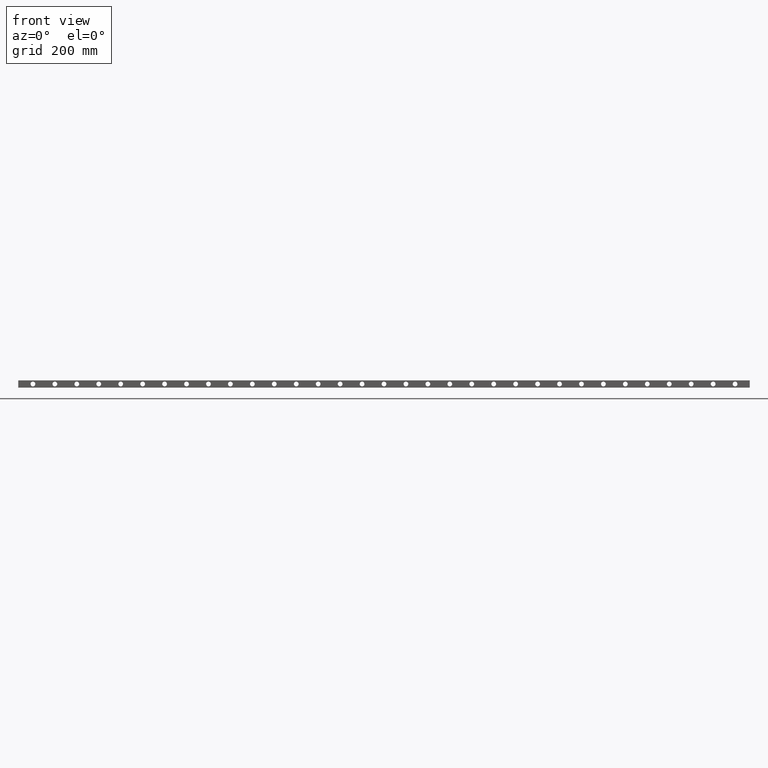
[diagram: clean part render]
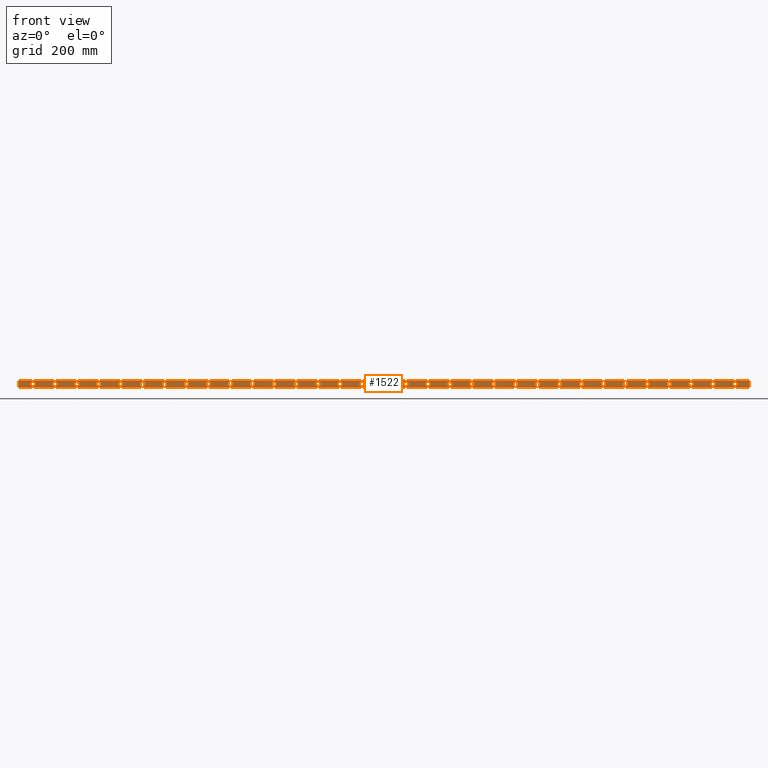
[diagram: same view with one face highlighted and labeled with its STEP entity id]
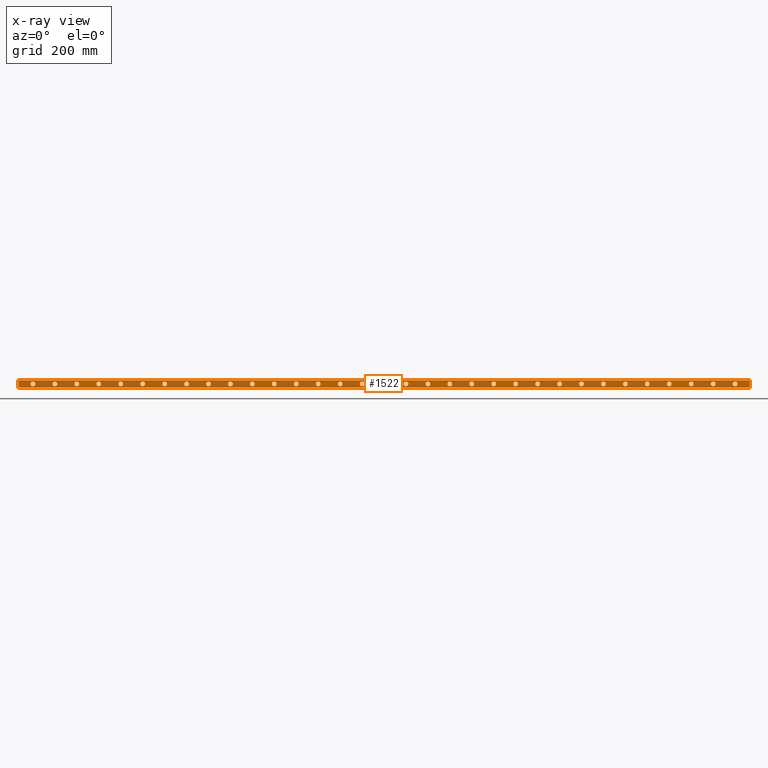
[diagram: x-ray of the same camera — body ghosted, the highlighted face saturated]
A machine part, front view. The second image highlights one B-rep face of the part: STEP entity #1522.
The next image is the same camera in x-ray: the body ghosted, the highlighted face saturated — about 0% of this face is hidden behind the body in this view.
In plain terms, the highlighted planar face has unit normal (0, -1, 0).
Its self-contained STEP definition (entity closure, byte-faithful):
#3 = CIRCLE ( 'NONE', #3822, 6.499999999999903200 ) ;
#14 = CIRCLE ( 'NONE', #6416, 6.499999999999903200 ) ;
#24 = ORIENTED_EDGE ( 'NONE', *, *, #5024, .F. ) ;
#50 = DIRECTION ( 'NONE',  ( 0.0000000000000000000, 1.000000000000000000, 0.0000000000000000000 ) ) ;
#55 = CARTESIAN_POINT ( 'NONE',  ( 519.9999999999998900, 0.0000000000000000000, -10.00000000000000000 ) ) ;
#84 = CIRCLE ( 'NONE', #1071, 6.499999999999903200 ) ;
#162 = EDGE_LOOP ( 'NONE', ( #5107, #5242 ) ) ;
#203 = CARTESIAN_POINT ( 'NONE',  ( 1959.999999999999500, 0.0000000000000000000, -16.49999999999990400 ) ) ;
#205 = CARTESIAN_POINT ( 'NONE',  ( 699.9999999999998900, 0.0000000000000000000, -16.49999999999990400 ) ) ;
#223 = DIRECTION ( 'NONE',  ( 0.0000000000000000000, 0.0000000000000000000, 1.000000000000000000 ) ) ;
#230 = DIRECTION ( 'NONE',  ( 0.0000000000000000000, 1.000000000000000000, 0.0000000000000000000 ) ) ;
#234 = CARTESIAN_POINT ( 'NONE',  ( 1359.999999999999500, 0.0000000000000000000, -10.00000000000000000 ) ) ;
#255 = CARTESIAN_POINT ( 'NONE',  ( 2000.000000000000000, 0.0000000000000000000, -20.00000000000000000 ) ) ;
#257 = DIRECTION ( 'NONE',  ( 0.0000000000000000000, 1.000000000000000000, 0.0000000000000000000 ) ) ;
#282 = CARTESIAN_POINT ( 'NONE',  ( 459.9999999999998300, 0.0000000000000000000, -3.499999999999984900 ) ) ;
#316 = CARTESIAN_POINT ( 'NONE',  ( 999.9999999999997700, 0.0000000000000000000, -16.49999999999990400 ) ) ;
#332 = EDGE_CURVE ( 'NONE', #3062, #5995, #1976, .T. ) ;
#345 = EDGE_CURVE ( 'NONE', #4290, #1156, #1765, .T. ) ;
#369 = DIRECTION ( 'NONE',  ( 0.0000000000000000000, 1.000000000000000000, 0.0000000000000000000 ) ) ;
#380 = CARTESIAN_POINT ( 'NONE',  ( 879.9999999999997700, 0.0000000000000000000, -10.00000000000000000 ) ) ;
#381 = CIRCLE ( 'NONE', #6992, 6.499999999999903200 ) ;
#387 = EDGE_CURVE ( 'NONE', #2606, #1837, #3340, .T. ) ;
#407 = CIRCLE ( 'NONE', #3486, 6.499999999999903200 ) ;
#411 = FACE_BOUND ( 'NONE', #1332, .T. ) ;
#415 = EDGE_LOOP ( 'NONE', ( #2282, #7881 ) ) ;
#419 = CARTESIAN_POINT ( 'NONE',  ( 699.9999999999998900, 0.0000000000000000000, -10.00000000000000000 ) ) ;
#434 = CARTESIAN_POINT ( 'NONE',  ( 399.9999999999998300, 0.0000000000000000000, -3.499999999999984900 ) ) ;
#435 = DIRECTION ( 'NONE',  ( 0.0000000000000000000, 0.0000000000000000000, 1.000000000000000000 ) ) ;
#487 = CARTESIAN_POINT ( 'NONE',  ( 1899.999999999999500, 0.0000000000000000000, -10.00000000000000000 ) ) ;
#507 = DIRECTION ( 'NONE',  ( 0.0000000000000000000, 0.0000000000000000000, 1.000000000000000000 ) ) ;
#513 = LINE ( 'NONE', #5257, #5207 ) ;
#523 = DIRECTION ( 'NONE',  ( 0.0000000000000000000, 1.000000000000000000, 0.0000000000000000000 ) ) ;
#527 = CARTESIAN_POINT ( 'NONE',  ( 1359.999999999999500, 0.0000000000000000000, -16.49999999999990400 ) ) ;
#546 = DIRECTION ( 'NONE',  ( 0.0000000000000000000, 0.0000000000000000000, 1.000000000000000000 ) ) ;
#557 = VERTEX_POINT ( 'NONE', #5513 ) ;
#561 = ORIENTED_EDGE ( 'NONE', *, *, #4716, .F. ) ;
#583 = DIRECTION ( 'NONE',  ( -0.0000000000000000000, -0.0000000000000000000, 1.000000000000000000 ) ) ;
#584 = CARTESIAN_POINT ( 'NONE',  ( 939.9999999999998900, 0.0000000000000000000, -10.00000000000000000 ) ) ;
#606 = EDGE_CURVE ( 'NONE', #5543, #3819, #717, .T. ) ;
#643 = VERTEX_POINT ( 'NONE', #4923 ) ;
#644 = VERTEX_POINT ( 'NONE', #4916 ) ;
#646 = EDGE_LOOP ( 'NONE', ( #1142, #2201 ) ) ;
#650 = DIRECTION ( 'NONE',  ( 0.0000000000000000000, 0.0000000000000000000, 1.000000000000000000 ) ) ;
#651 = DIRECTION ( 'NONE',  ( 0.0000000000000000000, 0.0000000000000000000, 1.000000000000000000 ) ) ;
#652 = DIRECTION ( 'NONE',  ( 0.0000000000000000000, 1.000000000000000000, 0.0000000000000000000 ) ) ;
#656 = DIRECTION ( 'NONE',  ( 0.0000000000000000000, 1.000000000000000000, 0.0000000000000000000 ) ) ;
#659 = CARTESIAN_POINT ( 'NONE',  ( 999.9999999999997700, 0.0000000000000000000, -10.00000000000000000 ) ) ;
#667 = CARTESIAN_POINT ( 'NONE',  ( 1599.999999999999500, 0.0000000000000000000, -10.00000000000000000 ) ) ;
#673 = EDGE_CURVE ( 'NONE', #6929, #4627, #6076, .T. ) ;
#689 = AXIS2_PLACEMENT_3D ( 'NONE', #2948, #7581, #3598 ) ;
#701 = CARTESIAN_POINT ( 'NONE',  ( 1479.999999999999500, 0.0000000000000000000, -16.49999999999990400 ) ) ;
#710 = FACE_BOUND ( 'NONE', #3956, .T. ) ;
#717 = CIRCLE ( 'NONE', #8179, 6.500000000000015100 ) ;
#719 = DIRECTION ( 'NONE',  ( 0.0000000000000000000, 0.0000000000000000000, 1.000000000000000000 ) ) ;
#724 = ORIENTED_EDGE ( 'NONE', *, *, #2222, .T. ) ;
#729 = CARTESIAN_POINT ( 'NONE',  ( 759.9999999999997700, 0.0000000000000000000, -10.00000000000000000 ) ) ;
#769 = ORIENTED_EDGE ( 'NONE', *, *, #6396, .T. ) ;
#774 = CARTESIAN_POINT ( 'NONE',  ( 1839.999999999999500, 0.0000000000000000000, -3.500000000000096800 ) ) ;
#792 = AXIS2_PLACEMENT_3D ( 'NONE', #7364, #3388, #7962 ) ;
#797 = CIRCLE ( 'NONE', #2028, 6.499999999999903200 ) ;
#803 = CARTESIAN_POINT ( 'NONE',  ( 639.9999999999998900, 0.0000000000000000000, -3.499999999999865000 ) ) ;
#808 = AXIS2_PLACEMENT_3D ( 'NONE', #3494, #3485, #3477 ) ;
#839 = CARTESIAN_POINT ( 'NONE',  ( 1059.999999999999800, 0.0000000000000000000, -10.00000000000000000 ) ) ;
#852 = AXIS2_PLACEMENT_3D ( 'NONE', #3565, #8127, #4242 ) ;
#857 = CARTESIAN_POINT ( 'NONE',  ( 339.9999999999998900, 0.0000000000000000000, -3.499999999999984900 ) ) ;
#865 = EDGE_CURVE ( 'NONE', #4017, #2893, #6383, .T. ) ;
#868 = AXIS2_PLACEMENT_3D ( 'NONE', #487, #5153, #1149 ) ;
#882 = EDGE_CURVE ( 'NONE', #2428, #6798, #6584, .T. ) ;
#918 = FACE_BOUND ( 'NONE', #5348, .T. ) ;
#920 = CARTESIAN_POINT ( 'NONE',  ( 519.9999999999998900, 0.0000000000000000000, -10.00000000000000000 ) ) ;
#932 = CARTESIAN_POINT ( 'NONE',  ( 579.9999999999998900, 0.0000000000000000000, -3.500000000000096800 ) ) ;
#933 = CIRCLE ( 'NONE', #1292, 6.500000000000015100 ) ;
#940 = EDGE_CURVE ( 'NONE', #6275, #2364, #5748, .T. ) ;
#966 = CARTESIAN_POINT ( 'NONE',  ( 159.9999999999999700, 0.0000000000000000000, -16.50000000000001400 ) ) ;
#982 = EDGE_CURVE ( 'NONE', #2972, #1737, #3128, .T. ) ;
#984 = EDGE_CURVE ( 'NONE', #7423, #6336, #8126, .T. ) ;
#992 = CARTESIAN_POINT ( 'NONE',  ( 1419.999999999999800, 0.0000000000000000000, -16.49999999999990400 ) ) ;
#995 = CIRCLE ( 'NONE', #5461, 6.500000000000135000 ) ;
#1014 = CARTESIAN_POINT ( 'NONE',  ( 1719.999999999999500, 0.0000000000000000000, -16.49999999999990400 ) ) ;
#1016 = CIRCLE ( 'NONE', #1815, 6.499999999999903200 ) ;
#1048 = DIRECTION ( 'NONE',  ( 0.0000000000000000000, 0.0000000000000000000, 1.000000000000000000 ) ) ;
#1058 = CARTESIAN_POINT ( 'NONE',  ( 519.9999999999998900, 0.0000000000000000000, -16.49999999999990400 ) ) ;
#1071 = AXIS2_PLACEMENT_3D ( 'NONE', #419, #5076, #1073 ) ;
#1073 = DIRECTION ( 'NONE',  ( 0.0000000000000000000, 0.0000000000000000000, 1.000000000000000000 ) ) ;
#1074 = CARTESIAN_POINT ( 'NONE',  ( 579.9999999999998900, 0.0000000000000000000, -16.49999999999990400 ) ) ;
#1117 = CIRCLE ( 'NONE', #868, 6.499999999999903200 ) ;
#1124 = FACE_BOUND ( 'NONE', #6910, .T. ) ;
#1141 = DIRECTION ( 'NONE',  ( 0.0000000000000000000, 1.000000000000000000, 0.0000000000000000000 ) ) ;
#1142 = ORIENTED_EDGE ( 'NONE', *, *, #673, .T. ) ;
#1149 = DIRECTION ( 'NONE',  ( 0.0000000000000000000, 0.0000000000000000000, 1.000000000000000000 ) ) ;
#1156 = VERTEX_POINT ( 'NONE', #2939 ) ;
#1178 = DIRECTION ( 'NONE',  ( 0.0000000000000000000, -0.0000000000000000000, -1.000000000000000000 ) ) ;
#1187 = DIRECTION ( 'NONE',  ( 0.0000000000000000000, -1.000000000000000000, 0.0000000000000000000 ) ) ;
#1197 = PLANE ( 'NONE',  #5582 ) ;
#1198 = CARTESIAN_POINT ( 'NONE',  ( 0.0000000000000000000, 0.0000000000000000000, 0.0000000000000000000 ) ) ;
#1204 = EDGE_CURVE ( 'NONE', #6785, #4921, #2073, .T. ) ;
#1228 = VECTOR ( 'NONE', #7637, 1000.000000000000000 ) ;
#1229 = CARTESIAN_POINT ( 'NONE',  ( 819.9999999999998900, 0.0000000000000000000, -3.500000000000096800 ) ) ;
#1249 = DIRECTION ( 'NONE',  ( 0.0000000000000000000, 0.0000000000000000000, 1.000000000000000000 ) ) ;
#1276 = EDGE_CURVE ( 'NONE', #4445, #5691, #6973, .T. ) ;
#1279 = ORIENTED_EDGE ( 'NONE', *, *, #1276, .T. ) ;
#1280 = CARTESIAN_POINT ( 'NONE',  ( 279.9999999999999400, 0.0000000000000000000, -3.499999999999984900 ) ) ;
#1292 = AXIS2_PLACEMENT_3D ( 'NONE', #4368, #369, #5039 ) ;
#1296 = VERTEX_POINT ( 'NONE', #2200 ) ;
#1331 = FACE_BOUND ( 'NONE', #5677, .T. ) ;
#1332 = EDGE_LOOP ( 'NONE', ( #3133, #7431 ) ) ;
#1358 = DIRECTION ( 'NONE',  ( 0.0000000000000000000, 1.000000000000000000, 0.0000000000000000000 ) ) ;
#1362 = CARTESIAN_POINT ( 'NONE',  ( 459.9999999999998300, 0.0000000000000000000, -10.00000000000000000 ) ) ;
#1372 = DIRECTION ( 'NONE',  ( 0.0000000000000000000, 1.000000000000000000, 0.0000000000000000000 ) ) ;
#1383 = VERTEX_POINT ( 'NONE', #1904 ) ;
#1391 = DIRECTION ( 'NONE',  ( 0.0000000000000000000, 0.0000000000000000000, 1.000000000000000000 ) ) ;
#1405 = ORIENTED_EDGE ( 'NONE', *, *, #6869, .T. ) ;
#1421 = CARTESIAN_POINT ( 'NONE',  ( 1359.999999999999500, 0.0000000000000000000, -10.00000000000000000 ) ) ;
#1440 = CARTESIAN_POINT ( 'NONE',  ( 219.9999999999999400, 0.0000000000000000000, -3.499999999999984900 ) ) ;
#1465 = ORIENTED_EDGE ( 'NONE', *, *, #7412, .T. ) ;
#1484 = AXIS2_PLACEMENT_3D ( 'NONE', #4252, #257, #4928 ) ;
#1507 = VERTEX_POINT ( 'NONE', #1229 ) ;
#1509 = DIRECTION ( 'NONE',  ( 0.0000000000000000000, 0.0000000000000000000, 1.000000000000000000 ) ) ;
#1522 = ADVANCED_FACE ( 'NONE', ( #5317, #5530, #411, #1968, #3530, #1754, #8470, #6871, #5103, #3329, #1546, #8299, #6670, #4898, #3117, #1331, #8115, #6479, #4696, #2913, #1124, #7937, #6274, #4484, #2697, #918, #7762, #6069, #4263, #2493, #710, #7577, #5860, #4053 ), #1197, .T. ) ;
#1546 = FACE_BOUND ( 'NONE', #646, .T. ) ;
#1569 = ORIENTED_EDGE ( 'NONE', *, *, #5648, .T. ) ;
#1580 = ORIENTED_EDGE ( 'NONE', *, *, #5822, .T. ) ;
#1584 = DIRECTION ( 'NONE',  ( 0.0000000000000000000, 0.0000000000000000000, 1.000000000000000000 ) ) ;
#1600 = VERTEX_POINT ( 'NONE', #992 ) ;
#1640 = CARTESIAN_POINT ( 'NONE',  ( 99.99999999999997200, 0.0000000000000000000, -16.50000000000001400 ) ) ;
#1647 = AXIS2_PLACEMENT_3D ( 'NONE', #3856, #3832, #3791 ) ;
#1658 = CARTESIAN_POINT ( 'NONE',  ( 1539.999999999999500, 0.0000000000000000000, -10.00000000000000000 ) ) ;
#1681 = ORIENTED_EDGE ( 'NONE', *, *, #8183, .T. ) ;
#1690 = AXIS2_PLACEMENT_3D ( 'NONE', #729, #5404, #1391 ) ;
#1718 = ORIENTED_EDGE ( 'NONE', *, *, #387, .T. ) ;
#1725 = EDGE_CURVE ( 'NONE', #2741, #5498, #8201, .T. ) ;
#1726 = CIRCLE ( 'NONE', #1912, 6.499999999999903200 ) ;
#1734 = CARTESIAN_POINT ( 'NONE',  ( 1059.999999999999800, 0.0000000000000000000, -10.00000000000000000 ) ) ;
#1737 = VERTEX_POINT ( 'NONE', #774 ) ;
#1742 = AXIS2_PLACEMENT_3D ( 'NONE', #5886, #1840, #6534 ) ;
#1754 = FACE_BOUND ( 'NONE', #162, .T. ) ;
#1759 = ORIENTED_EDGE ( 'NONE', *, *, #6503, .T. ) ;
#1765 = CIRCLE ( 'NONE', #5183, 6.500000000000015100 ) ;
#1779 = EDGE_LOOP ( 'NONE', ( #2941, #1718 ) ) ;
#1808 = EDGE_LOOP ( 'NONE', ( #6523, #7438 ) ) ;
#1809 = EDGE_CURVE ( 'NONE', #643, #7697, #1016, .T. ) ;
#1815 = AXIS2_PLACEMENT_3D ( 'NONE', #234, #230, #223 ) ;
#1837 = VERTEX_POINT ( 'NONE', #203 ) ;
#1840 = DIRECTION ( 'NONE',  ( 0.0000000000000000000, 1.000000000000000000, 0.0000000000000000000 ) ) ;
#1863 = AXIS2_PLACEMENT_3D ( 'NONE', #3478, #8047, #4155 ) ;
#1871 = DIRECTION ( 'NONE',  ( 0.0000000000000000000, 1.000000000000000000, 0.0000000000000000000 ) ) ;
#1892 = CARTESIAN_POINT ( 'NONE',  ( 219.9999999999999400, 0.0000000000000000000, -10.00000000000000000 ) ) ;
#1894 = EDGE_LOOP ( 'NONE', ( #3302, #1580 ) ) ;
#1904 = CARTESIAN_POINT ( 'NONE',  ( 459.9999999999998300, 0.0000000000000000000, -16.50000000000001400 ) ) ;
#1912 = AXIS2_PLACEMENT_3D ( 'NONE', #839, #5526, #1509 ) ;
#1916 = AXIS2_PLACEMENT_3D ( 'NONE', #7311, #3332, #7909 ) ;
#1919 = CARTESIAN_POINT ( 'NONE',  ( 1659.999999999999800, 0.0000000000000000000, -16.49999999999990400 ) ) ;
#1932 = EDGE_CURVE ( 'NONE', #7036, #1383, #4599, .T. ) ;
#1961 = CIRCLE ( 'NONE', #792, 6.499999999999903200 ) ;
#1968 = FACE_BOUND ( 'NONE', #1808, .T. ) ;
#1976 = CIRCLE ( 'NONE', #3397, 6.500000000000015100 ) ;
#2028 = AXIS2_PLACEMENT_3D ( 'NONE', #3635, #8174, #4307 ) ;
#2046 = VERTEX_POINT ( 'NONE', #6548 ) ;
#2067 = CIRCLE ( 'NONE', #7834, 6.500000000000015100 ) ;
#2073 = CIRCLE ( 'NONE', #3946, 6.499999999999903200 ) ;
#2079 = CARTESIAN_POINT ( 'NONE',  ( 1239.999999999999800, 0.0000000000000000000, -10.00000000000000000 ) ) ;
#2096 = DIRECTION ( 'NONE',  ( 0.0000000000000000000, 0.0000000000000000000, 1.000000000000000000 ) ) ;
#2104 = EDGE_CURVE ( 'NONE', #4177, #6974, #3952, .T. ) ;
#2143 = CARTESIAN_POINT ( 'NONE',  ( 40.00000000000000000, 0.0000000000000000000, -16.50000000000001400 ) ) ;
#2150 = AXIS2_PLACEMENT_3D ( 'NONE', #3406, #3395, #3385 ) ;
#2163 = EDGE_CURVE ( 'NONE', #1156, #4290, #7670, .T. ) ;
#2200 = CARTESIAN_POINT ( 'NONE',  ( 1539.999999999999500, 0.0000000000000000000, -3.500000000000096800 ) ) ;
#2201 = ORIENTED_EDGE ( 'NONE', *, *, #3339, .T. ) ;
#2220 = AXIS2_PLACEMENT_3D ( 'NONE', #6912, #2931, #7561 ) ;
#2222 = EDGE_CURVE ( 'NONE', #2046, #6734, #5316, .T. ) ;
#2261 = DIRECTION ( 'NONE',  ( 1.000000000000000000, 0.0000000000000000000, 0.0000000000000000000 ) ) ;
#2282 = ORIENTED_EDGE ( 'NONE', *, *, #4131, .T. ) ;
#2296 = ORIENTED_EDGE ( 'NONE', *, *, #8012, .F. ) ;
#2308 = DIRECTION ( 'NONE',  ( 0.0000000000000000000, 1.000000000000000000, 0.0000000000000000000 ) ) ;
#2339 = DIRECTION ( 'NONE',  ( 0.0000000000000000000, 0.0000000000000000000, 1.000000000000000000 ) ) ;
#2343 = DIRECTION ( 'NONE',  ( 0.0000000000000000000, 0.0000000000000000000, 1.000000000000000000 ) ) ;
#2349 = DIRECTION ( 'NONE',  ( 0.0000000000000000000, 1.000000000000000000, 0.0000000000000000000 ) ) ;
#2351 = CARTESIAN_POINT ( 'NONE',  ( 99.99999999999997200, 0.0000000000000000000, -10.00000000000000000 ) ) ;
#2354 = CARTESIAN_POINT ( 'NONE',  ( 1239.999999999999800, 0.0000000000000000000, -10.00000000000000000 ) ) ;
#2355 = CARTESIAN_POINT ( 'NONE',  ( 1839.999999999999500, 0.0000000000000000000, -16.49999999999990400 ) ) ;
#2358 = ORIENTED_EDGE ( 'NONE', *, *, #332, .T. ) ;
#2364 = VERTEX_POINT ( 'NONE', #1919 ) ;
#2423 = DIRECTION ( 'NONE',  ( 0.0000000000000000000, 0.0000000000000000000, 1.000000000000000000 ) ) ;
#2428 = VERTEX_POINT ( 'NONE', #1074 ) ;
#2430 = VERTEX_POINT ( 'NONE', #1014 ) ;
#2462 = VERTEX_POINT ( 'NONE', #803 ) ;
#2470 = EDGE_CURVE ( 'NONE', #2893, #4017, #6068, .T. ) ;
#2493 = FACE_BOUND ( 'NONE', #4198, .T. ) ;
#2507 = CIRCLE ( 'NONE', #1742, 6.499999999999903200 ) ;
#2528 = EDGE_LOOP ( 'NONE', ( #6609, #7988 ) ) ;
#2533 = AXIS2_PLACEMENT_3D ( 'NONE', #5383, #1372, #6081 ) ;
#2567 = DIRECTION ( 'NONE',  ( 0.0000000000000000000, 0.0000000000000000000, 1.000000000000000000 ) ) ;
#2577 = DIRECTION ( 'NONE',  ( 0.0000000000000000000, 0.0000000000000000000, 1.000000000000000000 ) ) ;
#2579 = DIRECTION ( 'NONE',  ( 0.0000000000000000000, 1.000000000000000000, 0.0000000000000000000 ) ) ;
#2593 = CARTESIAN_POINT ( 'NONE',  ( 1299.999999999999500, 0.0000000000000000000, -10.00000000000000000 ) ) ;
#2606 = VERTEX_POINT ( 'NONE', #4082 ) ;
#2612 = AXIS2_PLACEMENT_3D ( 'NONE', #3370, #3363, #3353 ) ;
#2626 = ORIENTED_EDGE ( 'NONE', *, *, #6397, .T. ) ;
#2646 = AXIS2_PLACEMENT_3D ( 'NONE', #8373, #4550, #546 ) ;
#2666 = EDGE_CURVE ( 'NONE', #557, #2430, #4991, .T. ) ;
#2685 = CIRCLE ( 'NONE', #6436, 6.499999999999903200 ) ;
#2690 = CIRCLE ( 'NONE', #8263, 6.499999999999903200 ) ;
#2697 = FACE_BOUND ( 'NONE', #8051, .T. ) ;
#2709 = CARTESIAN_POINT ( 'NONE',  ( 939.9999999999998900, 0.0000000000000000000, -3.500000000000096800 ) ) ;
#2714 = CIRCLE ( 'NONE', #7690, 6.499999999999903200 ) ;
#2717 = DIRECTION ( 'NONE',  ( 0.0000000000000000000, 1.000000000000000000, 0.0000000000000000000 ) ) ;
#2720 = DIRECTION ( 'NONE',  ( 0.0000000000000000000, 1.000000000000000000, 0.0000000000000000000 ) ) ;
#2723 = AXIS2_PLACEMENT_3D ( 'NONE', #1362, #7316, #7236 ) ;
#2741 = VERTEX_POINT ( 'NONE', #316 ) ;
#2749 = CARTESIAN_POINT ( 'NONE',  ( 99.99999999999997200, 0.0000000000000000000, -3.499999999999984000 ) ) ;
#2751 = DIRECTION ( 'NONE',  ( 0.0000000000000000000, 0.0000000000000000000, 1.000000000000000000 ) ) ;
#2764 = AXIS2_PLACEMENT_3D ( 'NONE', #3615, #8164, #4296 ) ;
#2773 = ORIENTED_EDGE ( 'NONE', *, *, #882, .T. ) ;
#2789 = ORIENTED_EDGE ( 'NONE', *, *, #7154, .T. ) ;
#2810 = CARTESIAN_POINT ( 'NONE',  ( 0.0000000000000000000, 0.0000000000000000000, 0.0000000000000000000 ) ) ;
#2827 = AXIS2_PLACEMENT_3D ( 'NONE', #6709, #2717, #7363 ) ;
#2834 = CARTESIAN_POINT ( 'NONE',  ( 819.9999999999998900, 0.0000000000000000000, -16.49999999999990400 ) ) ;
#2840 = EDGE_LOOP ( 'NONE', ( #7013, #1569 ) ) ;
#2854 = EDGE_CURVE ( 'NONE', #5831, #3585, #5740, .T. ) ;
#2856 = VERTEX_POINT ( 'NONE', #255 ) ;
#2866 = EDGE_CURVE ( 'NONE', #6671, #6829, #7271, .T. ) ;
#2887 = ORIENTED_EDGE ( 'NONE', *, *, #2163, .T. ) ;
#2893 = VERTEX_POINT ( 'NONE', #4305 ) ;
#2913 = FACE_BOUND ( 'NONE', #7707, .T. ) ;
#2917 = VERTEX_POINT ( 'NONE', #6343 ) ;
#2931 = DIRECTION ( 'NONE',  ( 0.0000000000000000000, 1.000000000000000000, 0.0000000000000000000 ) ) ;
#2937 = AXIS2_PLACEMENT_3D ( 'NONE', #2997, #7622, #3664 ) ;
#2939 = CARTESIAN_POINT ( 'NONE',  ( 159.9999999999999700, 0.0000000000000000000, -3.499999999999984900 ) ) ;
#2941 = ORIENTED_EDGE ( 'NONE', *, *, #3178, .T. ) ;
#2948 = CARTESIAN_POINT ( 'NONE',  ( 279.9999999999999400, 0.0000000000000000000, -10.00000000000000000 ) ) ;
#2972 = VERTEX_POINT ( 'NONE', #2355 ) ;
#2975 = CARTESIAN_POINT ( 'NONE',  ( 219.9999999999999400, 0.0000000000000000000, -16.50000000000001400 ) ) ;
#2997 = CARTESIAN_POINT ( 'NONE',  ( 1479.999999999999500, 0.0000000000000000000, -10.00000000000000000 ) ) ;
#3031 = CARTESIAN_POINT ( 'NONE',  ( 639.9999999999998900, 0.0000000000000000000, -10.00000000000000000 ) ) ;
#3032 = DIRECTION ( 'NONE',  ( 0.0000000000000000000, 0.0000000000000000000, 1.000000000000000000 ) ) ;
#3062 = VERTEX_POINT ( 'NONE', #434 ) ;
#3073 = VERTEX_POINT ( 'NONE', #6455 ) ;
#3078 = EDGE_CURVE ( 'NONE', #7912, #3654, #1117, .T. ) ;
#3117 = FACE_BOUND ( 'NONE', #3266, .T. ) ;
#3121 = AXIS2_PLACEMENT_3D ( 'NONE', #3608, #8161, #4291 ) ;
#3128 = CIRCLE ( 'NONE', #2150, 6.499999999999903200 ) ;
#3130 = CARTESIAN_POINT ( 'NONE',  ( 699.9999999999998900, 0.0000000000000000000, -3.500000000000096800 ) ) ;
#3133 = ORIENTED_EDGE ( 'NONE', *, *, #8230, .T. ) ;
#3135 = EDGE_CURVE ( 'NONE', #6588, #7087, #2685, .T. ) ;
#3178 = EDGE_CURVE ( 'NONE', #1837, #2606, #4258, .T. ) ;
#3230 = EDGE_LOOP ( 'NONE', ( #1465, #5531 ) ) ;
#3237 = EDGE_CURVE ( 'NONE', #3654, #7912, #4043, .T. ) ;
#3248 = EDGE_CURVE ( 'NONE', #4921, #6785, #5854, .T. ) ;
#3257 = CARTESIAN_POINT ( 'NONE',  ( 1059.999999999999800, 0.0000000000000000000, -3.500000000000096800 ) ) ;
#3266 = EDGE_LOOP ( 'NONE', ( #4681, #2789 ) ) ;
#3274 = EDGE_LOOP ( 'NONE', ( #3851, #4413 ) ) ;
#3285 = EDGE_LOOP ( 'NONE', ( #2626, #1405 ) ) ;
#3293 = VERTEX_POINT ( 'NONE', #5706 ) ;
#3297 = EDGE_CURVE ( 'NONE', #6734, #2046, #5624, .T. ) ;
#3302 = ORIENTED_EDGE ( 'NONE', *, *, #2104, .T. ) ;
#3313 = CIRCLE ( 'NONE', #6091, 6.500000000000135000 ) ;
#3329 = FACE_BOUND ( 'NONE', #7105, .T. ) ;
#3332 = DIRECTION ( 'NONE',  ( 0.0000000000000000000, 1.000000000000000000, 0.0000000000000000000 ) ) ;
#3339 = EDGE_CURVE ( 'NONE', #4627, #6929, #84, .T. ) ;
#3340 = CIRCLE ( 'NONE', #6104, 6.499999999999903200 ) ;
#3350 = CARTESIAN_POINT ( 'NONE',  ( 2000.000000000000000, 0.0000000000000000000, 0.0000000000000000000 ) ) ;
#3353 = DIRECTION ( 'NONE',  ( 0.0000000000000000000, 0.0000000000000000000, 1.000000000000000000 ) ) ;
#3363 = DIRECTION ( 'NONE',  ( 0.0000000000000000000, 1.000000000000000000, 0.0000000000000000000 ) ) ;
#3370 = CARTESIAN_POINT ( 'NONE',  ( 939.9999999999998900, 0.0000000000000000000, -10.00000000000000000 ) ) ;
#3385 = DIRECTION ( 'NONE',  ( 0.0000000000000000000, 0.0000000000000000000, 1.000000000000000000 ) ) ;
#3388 = DIRECTION ( 'NONE',  ( 0.0000000000000000000, 1.000000000000000000, 0.0000000000000000000 ) ) ;
#3393 = EDGE_LOOP ( 'NONE', ( #5515, #5467 ) ) ;
#3395 = DIRECTION ( 'NONE',  ( 0.0000000000000000000, 1.000000000000000000, 0.0000000000000000000 ) ) ;
#3397 = AXIS2_PLACEMENT_3D ( 'NONE', #6289, #6278, #6267 ) ;
#3406 = CARTESIAN_POINT ( 'NONE',  ( 1839.999999999999500, 0.0000000000000000000, -10.00000000000000000 ) ) ;
#3429 = ORIENTED_EDGE ( 'NONE', *, *, #7060, .T. ) ;
#3458 = CARTESIAN_POINT ( 'NONE',  ( 459.9999999999998300, 0.0000000000000000000, -10.00000000000000000 ) ) ;
#3477 = DIRECTION ( 'NONE',  ( 0.0000000000000000000, 0.0000000000000000000, 1.000000000000000000 ) ) ;
#3478 = CARTESIAN_POINT ( 'NONE',  ( 819.9999999999998900, 0.0000000000000000000, -10.00000000000000000 ) ) ;
#3485 = DIRECTION ( 'NONE',  ( 0.0000000000000000000, 1.000000000000000000, 0.0000000000000000000 ) ) ;
#3486 = AXIS2_PLACEMENT_3D ( 'NONE', #1421, #6124, #2096 ) ;
#3494 = CARTESIAN_POINT ( 'NONE',  ( 1659.999999999999800, 0.0000000000000000000, -10.00000000000000000 ) ) ;
#3530 = FACE_BOUND ( 'NONE', #3285, .T. ) ;
#3531 = VERTEX_POINT ( 'NONE', #8389 ) ;
#3552 = DIRECTION ( 'NONE',  ( 0.0000000000000000000, 1.000000000000000000, 0.0000000000000000000 ) ) ;
#3565 = CARTESIAN_POINT ( 'NONE',  ( 999.9999999999997700, 0.0000000000000000000, -10.00000000000000000 ) ) ;
#3585 = VERTEX_POINT ( 'NONE', #1058 ) ;
#3592 = VERTEX_POINT ( 'NONE', #7701 ) ;
#3598 = DIRECTION ( 'NONE',  ( 0.0000000000000000000, 0.0000000000000000000, 1.000000000000000000 ) ) ;
#3608 = CARTESIAN_POINT ( 'NONE',  ( 1899.999999999999500, 0.0000000000000000000, -10.00000000000000000 ) ) ;
#3615 = CARTESIAN_POINT ( 'NONE',  ( 1779.999999999999500, 0.0000000000000000000, -10.00000000000000000 ) ) ;
#3635 = CARTESIAN_POINT ( 'NONE',  ( 1839.999999999999500, 0.0000000000000000000, -10.00000000000000000 ) ) ;
#3654 = VERTEX_POINT ( 'NONE', #8325 ) ;
#3664 = DIRECTION ( 'NONE',  ( 0.0000000000000000000, 0.0000000000000000000, 1.000000000000000000 ) ) ;
#3665 = AXIS2_PLACEMENT_3D ( 'NONE', #4736, #4726, #4719 ) ;
#3682 = CARTESIAN_POINT ( 'NONE',  ( 1119.999999999999800, 0.0000000000000000000, -10.00000000000000000 ) ) ;
#3691 = DIRECTION ( 'NONE',  ( 0.0000000000000000000, 0.0000000000000000000, 1.000000000000000000 ) ) ;
#3692 = CARTESIAN_POINT ( 'NONE',  ( 1479.999999999999500, 0.0000000000000000000, -3.500000000000096800 ) ) ;
#3709 = DIRECTION ( 'NONE',  ( 0.0000000000000000000, 0.0000000000000000000, 1.000000000000000000 ) ) ;
#3711 = ORIENTED_EDGE ( 'NONE', *, *, #7318, .T. ) ;
#3716 = ORIENTED_EDGE ( 'NONE', *, *, #3737, .T. ) ;
#3717 = DIRECTION ( 'NONE',  ( 0.0000000000000000000, 1.000000000000000000, 0.0000000000000000000 ) ) ;
#3730 = CARTESIAN_POINT ( 'NONE',  ( 579.9999999999998900, 0.0000000000000000000, -10.00000000000000000 ) ) ;
#3737 = EDGE_CURVE ( 'NONE', #3750, #6204, #5614, .T. ) ;
#3738 = DIRECTION ( 'NONE',  ( 0.0000000000000000000, 1.000000000000000000, 0.0000000000000000000 ) ) ;
#3741 = VECTOR ( 'NONE', #4011, 1000.000000000000000 ) ;
#3744 = CIRCLE ( 'NONE', #1690, 6.499999999999903200 ) ;
#3750 = VERTEX_POINT ( 'NONE', #3890 ) ;
#3773 = DIRECTION ( 'NONE',  ( 0.0000000000000000000, 0.0000000000000000000, 1.000000000000000000 ) ) ;
#3784 = DIRECTION ( 'NONE',  ( 0.0000000000000000000, 1.000000000000000000, 0.0000000000000000000 ) ) ;
#3789 = CARTESIAN_POINT ( 'NONE',  ( 339.9999999999998900, 0.0000000000000000000, -10.00000000000000000 ) ) ;
#3791 = DIRECTION ( 'NONE',  ( 0.0000000000000000000, 0.0000000000000000000, 1.000000000000000000 ) ) ;
#3793 = CARTESIAN_POINT ( 'NONE',  ( 1599.999999999999500, 0.0000000000000000000, -10.00000000000000000 ) ) ;
#3801 = DIRECTION ( 'NONE',  ( 0.0000000000000000000, 1.000000000000000000, 0.0000000000000000000 ) ) ;
#3811 = VERTEX_POINT ( 'NONE', #1280 ) ;
#3819 = VERTEX_POINT ( 'NONE', #7289 ) ;
#3822 = AXIS2_PLACEMENT_3D ( 'NONE', #1734, #6432, #2423 ) ;
#3827 = ORIENTED_EDGE ( 'NONE', *, *, #2470, .T. ) ;
#3832 = DIRECTION ( 'NONE',  ( 0.0000000000000000000, 1.000000000000000000, 0.0000000000000000000 ) ) ;
#3851 = ORIENTED_EDGE ( 'NONE', *, *, #606, .T. ) ;
#3856 = CARTESIAN_POINT ( 'NONE',  ( 879.9999999999997700, 0.0000000000000000000, -10.00000000000000000 ) ) ;
#3887 = VERTEX_POINT ( 'NONE', #5327 ) ;
#3890 = CARTESIAN_POINT ( 'NONE',  ( 1179.999999999999800, 0.0000000000000000000, -3.500000000000096800 ) ) ;
#3929 = CARTESIAN_POINT ( 'NONE',  ( 1599.999999999999500, 0.0000000000000000000, -3.500000000000096800 ) ) ;
#3940 = CARTESIAN_POINT ( 'NONE',  ( 99.99999999999997200, 0.0000000000000000000, -10.00000000000000000 ) ) ;
#3946 = AXIS2_PLACEMENT_3D ( 'NONE', #2593, #2579, #2577 ) ;
#3952 = CIRCLE ( 'NONE', #6738, 6.500000000000015100 ) ;
#3954 = ORIENTED_EDGE ( 'NONE', *, *, #1725, .T. ) ;
#3956 = EDGE_LOOP ( 'NONE', ( #3827, #7263 ) ) ;
#3981 = EDGE_LOOP ( 'NONE', ( #561, #2296, #24, #7449 ) ) ;
#4007 = AXIS2_PLACEMENT_3D ( 'NONE', #6324, #2308, #6959 ) ;
#4011 = DIRECTION ( 'NONE',  ( 0.0000000000000000000, 0.0000000000000000000, -1.000000000000000000 ) ) ;
#4017 = VERTEX_POINT ( 'NONE', #3929 ) ;
#4036 = CIRCLE ( 'NONE', #1863, 6.499999999999903200 ) ;
#4040 = CARTESIAN_POINT ( 'NONE',  ( 40.00000000000000000, 0.0000000000000000000, -10.00000000000000000 ) ) ;
#4043 = CIRCLE ( 'NONE', #3121, 6.499999999999903200 ) ;
#4053 = FACE_BOUND ( 'NONE', #1779, .T. ) ;
#4082 = CARTESIAN_POINT ( 'NONE',  ( 1959.999999999999500, 0.0000000000000000000, -3.500000000000096800 ) ) ;
#4118 = DIRECTION ( 'NONE',  ( 0.0000000000000000000, 0.0000000000000000000, 1.000000000000000000 ) ) ;
#4130 = DIRECTION ( 'NONE',  ( 0.0000000000000000000, 0.0000000000000000000, 1.000000000000000000 ) ) ;
#4131 = EDGE_CURVE ( 'NONE', #3585, #5831, #8449, .T. ) ;
#4140 = DIRECTION ( 'NONE',  ( 0.0000000000000000000, 1.000000000000000000, 0.0000000000000000000 ) ) ;
#4147 = ORIENTED_EDGE ( 'NONE', *, *, #3297, .T. ) ;
#4155 = DIRECTION ( 'NONE',  ( 0.0000000000000000000, 0.0000000000000000000, 1.000000000000000000 ) ) ;
#4159 = AXIS2_PLACEMENT_3D ( 'NONE', #7534, #3552, #8112 ) ;
#4177 = VERTEX_POINT ( 'NONE', #6724 ) ;
#4185 = CARTESIAN_POINT ( 'NONE',  ( 159.9999999999999700, 0.0000000000000000000, -10.00000000000000000 ) ) ;
#4196 = EDGE_LOOP ( 'NONE', ( #7456, #7599 ) ) ;
#4198 = EDGE_LOOP ( 'NONE', ( #7737, #4424 ) ) ;
#4206 = ORIENTED_EDGE ( 'NONE', *, *, #8253, .T. ) ;
#4237 = CARTESIAN_POINT ( 'NONE',  ( 1179.999999999999800, 0.0000000000000000000, -16.49999999999990400 ) ) ;
#4242 = DIRECTION ( 'NONE',  ( 0.0000000000000000000, 0.0000000000000000000, 1.000000000000000000 ) ) ;
#4251 = CARTESIAN_POINT ( 'NONE',  ( 0.0000000000000000000, 0.0000000000000000000, 0.0000000000000000000 ) ) ;
#4252 = CARTESIAN_POINT ( 'NONE',  ( 1719.999999999999500, 0.0000000000000000000, -10.00000000000000000 ) ) ;
#4258 = CIRCLE ( 'NONE', #2220, 6.499999999999903200 ) ;
#4263 = FACE_BOUND ( 'NONE', #5229, .T. ) ;
#4269 = CIRCLE ( 'NONE', #6940, 6.500000000000015100 ) ;
#4270 = CARTESIAN_POINT ( 'NONE',  ( 0.0000000000000000000, 0.0000000000000000000, -20.00000000000000000 ) ) ;
#4290 = VERTEX_POINT ( 'NONE', #966 ) ;
#4291 = DIRECTION ( 'NONE',  ( 0.0000000000000000000, 0.0000000000000000000, 1.000000000000000000 ) ) ;
#4296 = DIRECTION ( 'NONE',  ( 0.0000000000000000000, 0.0000000000000000000, 1.000000000000000000 ) ) ;
#4305 = CARTESIAN_POINT ( 'NONE',  ( 1599.999999999999500, 0.0000000000000000000, -16.49999999999990400 ) ) ;
#4307 = DIRECTION ( 'NONE',  ( 0.0000000000000000000, 0.0000000000000000000, 1.000000000000000000 ) ) ;
#4313 = AXIS2_PLACEMENT_3D ( 'NONE', #5146, #1141, #5840 ) ;
#4352 = DIRECTION ( 'NONE',  ( 0.0000000000000000000, 0.0000000000000000000, 1.000000000000000000 ) ) ;
#4357 = EDGE_CURVE ( 'NONE', #1296, #3293, #5196, .T. ) ;
#4368 = CARTESIAN_POINT ( 'NONE',  ( 399.9999999999998300, 0.0000000000000000000, -10.00000000000000000 ) ) ;
#4413 = ORIENTED_EDGE ( 'NONE', *, *, #7807, .T. ) ;
#4424 = ORIENTED_EDGE ( 'NONE', *, *, #5696, .T. ) ;
#4433 = DIRECTION ( 'NONE',  ( 0.0000000000000000000, 1.000000000000000000, 0.0000000000000000000 ) ) ;
#4445 = VERTEX_POINT ( 'NONE', #2749 ) ;
#4455 = VERTEX_POINT ( 'NONE', #6195 ) ;
#4461 = DIRECTION ( 'NONE',  ( 0.0000000000000000000, 0.0000000000000000000, 1.000000000000000000 ) ) ;
#4471 = AXIS2_PLACEMENT_3D ( 'NONE', #380, #5047, #1048 ) ;
#4477 = CIRCLE ( 'NONE', #852, 6.499999999999903200 ) ;
#4482 = CARTESIAN_POINT ( 'NONE',  ( 759.9999999999997700, 0.0000000000000000000, -16.49999999999990400 ) ) ;
#4484 = FACE_BOUND ( 'NONE', #5975, .T. ) ;
#4511 = DIRECTION ( 'NONE',  ( 0.0000000000000000000, 1.000000000000000000, 0.0000000000000000000 ) ) ;
#4522 = CARTESIAN_POINT ( 'NONE',  ( 1479.999999999999500, 0.0000000000000000000, -10.00000000000000000 ) ) ;
#4550 = DIRECTION ( 'NONE',  ( 0.0000000000000000000, 1.000000000000000000, 0.0000000000000000000 ) ) ;
#4567 = CIRCLE ( 'NONE', #6573, 6.500000000000016000 ) ;
#4599 = CIRCLE ( 'NONE', #2723, 6.500000000000015100 ) ;
#4612 = ORIENTED_EDGE ( 'NONE', *, *, #7606, .T. ) ;
#4620 = EDGE_LOOP ( 'NONE', ( #769, #8092 ) ) ;
#4627 = VERTEX_POINT ( 'NONE', #3130 ) ;
#4632 = DIRECTION ( 'NONE',  ( 0.0000000000000000000, 0.0000000000000000000, 1.000000000000000000 ) ) ;
#4635 = DIRECTION ( 'NONE',  ( 0.0000000000000000000, 1.000000000000000000, 0.0000000000000000000 ) ) ;
#4652 = EDGE_CURVE ( 'NONE', #8454, #3531, #6158, .T. ) ;
#4665 = CARTESIAN_POINT ( 'NONE',  ( 339.9999999999998900, 0.0000000000000000000, -10.00000000000000000 ) ) ;
#4666 = EDGE_CURVE ( 'NONE', #6848, #5059, #2067, .T. ) ;
#4672 = CIRCLE ( 'NONE', #4159, 6.499999999999903200 ) ;
#4679 = DIRECTION ( 'NONE',  ( 0.0000000000000000000, 0.0000000000000000000, 1.000000000000000000 ) ) ;
#4681 = ORIENTED_EDGE ( 'NONE', *, *, #4666, .T. ) ;
#4696 = FACE_BOUND ( 'NONE', #5160, .T. ) ;
#4716 = EDGE_CURVE ( 'NONE', #3073, #6671, #513, .T. ) ;
#4719 = DIRECTION ( 'NONE',  ( 0.0000000000000000000, 0.0000000000000000000, 1.000000000000000000 ) ) ;
#4724 = DIRECTION ( 'NONE',  ( 0.0000000000000000000, 0.0000000000000000000, 1.000000000000000000 ) ) ;
#4726 = DIRECTION ( 'NONE',  ( 0.0000000000000000000, 1.000000000000000000, 0.0000000000000000000 ) ) ;
#4728 = DIRECTION ( 'NONE',  ( 0.0000000000000000000, 1.000000000000000000, 0.0000000000000000000 ) ) ;
#4729 = AXIS2_PLACEMENT_3D ( 'NONE', #8275, #4433, #435 ) ;
#4736 = CARTESIAN_POINT ( 'NONE',  ( 699.9999999999998900, 0.0000000000000000000, -10.00000000000000000 ) ) ;
#4802 = AXIS2_PLACEMENT_3D ( 'NONE', #667, #656, #650 ) ;
#4816 = EDGE_CURVE ( 'NONE', #6204, #3750, #8385, .T. ) ;
#4865 = EDGE_CURVE ( 'NONE', #1507, #5544, #7851, .T. ) ;
#4881 = CARTESIAN_POINT ( 'NONE',  ( 879.9999999999997700, 0.0000000000000000000, -16.50000000000013500 ) ) ;
#4898 = FACE_BOUND ( 'NONE', #1894, .T. ) ;
#4916 = CARTESIAN_POINT ( 'NONE',  ( 1239.999999999999800, 0.0000000000000000000, -16.49999999999990400 ) ) ;
#4921 = VERTEX_POINT ( 'NONE', #8406 ) ;
#4923 = CARTESIAN_POINT ( 'NONE',  ( 1359.999999999999500, 0.0000000000000000000, -3.500000000000096800 ) ) ;
#4924 = ORIENTED_EDGE ( 'NONE', *, *, #8433, .T. ) ;
#4928 = DIRECTION ( 'NONE',  ( 0.0000000000000000000, 0.0000000000000000000, 1.000000000000000000 ) ) ;
#4944 = DIRECTION ( 'NONE',  ( 0.0000000000000000000, 0.0000000000000000000, 1.000000000000000000 ) ) ;
#4946 = DIRECTION ( 'NONE',  ( 0.0000000000000000000, 1.000000000000000000, 0.0000000000000000000 ) ) ;
#4955 = CARTESIAN_POINT ( 'NONE',  ( 40.00000000000000000, 0.0000000000000000000, -10.00000000000000000 ) ) ;
#4991 = CIRCLE ( 'NONE', #1484, 6.499999999999903200 ) ;
#4997 = CARTESIAN_POINT ( 'NONE',  ( 1659.999999999999800, 0.0000000000000000000, -3.500000000000096800 ) ) ;
#5016 = ORIENTED_EDGE ( 'NONE', *, *, #984, .T. ) ;
#5024 = EDGE_CURVE ( 'NONE', #6829, #2856, #7065, .T. ) ;
#5039 = DIRECTION ( 'NONE',  ( 0.0000000000000000000, 0.0000000000000000000, 1.000000000000000000 ) ) ;
#5047 = DIRECTION ( 'NONE',  ( 0.0000000000000000000, 1.000000000000000000, 0.0000000000000000000 ) ) ;
#5054 = CARTESIAN_POINT ( 'NONE',  ( 1779.999999999999500, 0.0000000000000000000, -16.49999999999990400 ) ) ;
#5059 = VERTEX_POINT ( 'NONE', #1440 ) ;
#5071 = EDGE_CURVE ( 'NONE', #1383, #7036, #6864, .T. ) ;
#5076 = DIRECTION ( 'NONE',  ( 0.0000000000000000000, 1.000000000000000000, 0.0000000000000000000 ) ) ;
#5103 = FACE_BOUND ( 'NONE', #5353, .T. ) ;
#5107 = ORIENTED_EDGE ( 'NONE', *, *, #3248, .T. ) ;
#5146 = CARTESIAN_POINT ( 'NONE',  ( 1419.999999999999800, 0.0000000000000000000, -10.00000000000000000 ) ) ;
#5153 = DIRECTION ( 'NONE',  ( 0.0000000000000000000, 1.000000000000000000, 0.0000000000000000000 ) ) ;
#5160 = EDGE_LOOP ( 'NONE', ( #5926, #2887 ) ) ;
#5166 = ORIENTED_EDGE ( 'NONE', *, *, #4816, .T. ) ;
#5179 = DIRECTION ( 'NONE',  ( 0.0000000000000000000, 0.0000000000000000000, 1.000000000000000000 ) ) ;
#5183 = AXIS2_PLACEMENT_3D ( 'NONE', #6243, #6241, #6232 ) ;
#5187 = CIRCLE ( 'NONE', #2764, 6.499999999999903200 ) ;
#5193 = EDGE_CURVE ( 'NONE', #5498, #2741, #4477, .T. ) ;
#5196 = CIRCLE ( 'NONE', #2533, 6.499999999999903200 ) ;
#5197 = CIRCLE ( 'NONE', #689, 6.500000000000015100 ) ;
#5207 = VECTOR ( 'NONE', #583, 1000.000000000000000 ) ;
#5229 = EDGE_LOOP ( 'NONE', ( #4206, #5699 ) ) ;
#5242 = ORIENTED_EDGE ( 'NONE', *, *, #1204, .T. ) ;
#5257 = CARTESIAN_POINT ( 'NONE',  ( 0.0000000000000000000, 0.0000000000000000000, 0.0000000000000000000 ) ) ;
#5258 = DIRECTION ( 'NONE',  ( 0.0000000000000000000, 1.000000000000000000, 0.0000000000000000000 ) ) ;
#5262 = ORIENTED_EDGE ( 'NONE', *, *, #6111, .T. ) ;
#5316 = CIRCLE ( 'NONE', #1647, 6.500000000000135000 ) ;
#5317 = FACE_BOUND ( 'NONE', #4196, .T. ) ;
#5327 = CARTESIAN_POINT ( 'NONE',  ( 1059.999999999999800, 0.0000000000000000000, -16.49999999999990400 ) ) ;
#5347 = ORIENTED_EDGE ( 'NONE', *, *, #7083, .T. ) ;
#5348 = EDGE_LOOP ( 'NONE', ( #3954, #5472 ) ) ;
#5353 = EDGE_LOOP ( 'NONE', ( #1681, #5016 ) ) ;
#5370 = CARTESIAN_POINT ( 'NONE',  ( 1719.999999999999500, 0.0000000000000000000, -10.00000000000000000 ) ) ;
#5383 = CARTESIAN_POINT ( 'NONE',  ( 1539.999999999999500, 0.0000000000000000000, -10.00000000000000000 ) ) ;
#5404 = DIRECTION ( 'NONE',  ( 0.0000000000000000000, 1.000000000000000000, 0.0000000000000000000 ) ) ;
#5439 = ORIENTED_EDGE ( 'NONE', *, *, #7127, .T. ) ;
#5461 = AXIS2_PLACEMENT_3D ( 'NONE', #7745, #3801, #8323 ) ;
#5467 = ORIENTED_EDGE ( 'NONE', *, *, #6228, .T. ) ;
#5472 = ORIENTED_EDGE ( 'NONE', *, *, #5193, .T. ) ;
#5498 = VERTEX_POINT ( 'NONE', #7958 ) ;
#5513 = CARTESIAN_POINT ( 'NONE',  ( 1719.999999999999500, 0.0000000000000000000, -3.500000000000096800 ) ) ;
#5514 = VERTEX_POINT ( 'NONE', #7356 ) ;
#5515 = ORIENTED_EDGE ( 'NONE', *, *, #4652, .T. ) ;
#5522 = VECTOR ( 'NONE', #2261, 1000.000000000000000 ) ;
#5526 = DIRECTION ( 'NONE',  ( 0.0000000000000000000, 1.000000000000000000, 0.0000000000000000000 ) ) ;
#5530 = FACE_BOUND ( 'NONE', #3393, .T. ) ;
#5531 = ORIENTED_EDGE ( 'NONE', *, *, #2666, .T. ) ;
#5532 = AXIS2_PLACEMENT_3D ( 'NONE', #920, #5599, #1584 ) ;
#5543 = VERTEX_POINT ( 'NONE', #2143 ) ;
#5544 = VERTEX_POINT ( 'NONE', #2834 ) ;
#5549 = CARTESIAN_POINT ( 'NONE',  ( 1419.999999999999800, 0.0000000000000000000, -3.500000000000096800 ) ) ;
#5582 = AXIS2_PLACEMENT_3D ( 'NONE', #1198, #1187, #1178 ) ;
#5591 = EDGE_CURVE ( 'NONE', #3811, #5514, #5197, .T. ) ;
#5599 = DIRECTION ( 'NONE',  ( 0.0000000000000000000, 1.000000000000000000, 0.0000000000000000000 ) ) ;
#5614 = CIRCLE ( 'NONE', #7325, 6.499999999999903200 ) ;
#5624 = CIRCLE ( 'NONE', #4471, 6.500000000000135000 ) ;
#5625 = AXIS2_PLACEMENT_3D ( 'NONE', #3789, #8310, #4461 ) ;
#5648 = EDGE_CURVE ( 'NONE', #1737, #2972, #797, .T. ) ;
#5670 = EDGE_LOOP ( 'NONE', ( #2773, #6277 ) ) ;
#5677 = EDGE_LOOP ( 'NONE', ( #1759, #1279 ) ) ;
#5679 = AXIS2_PLACEMENT_3D ( 'NONE', #8340, #4511, #507 ) ;
#5691 = VERTEX_POINT ( 'NONE', #1640 ) ;
#5696 = EDGE_CURVE ( 'NONE', #7087, #6588, #5735, .T. ) ;
#5699 = ORIENTED_EDGE ( 'NONE', *, *, #1809, .T. ) ;
#5703 = EDGE_LOOP ( 'NONE', ( #4612, #6857 ) ) ;
#5706 = CARTESIAN_POINT ( 'NONE',  ( 1539.999999999999500, 0.0000000000000000000, -16.49999999999990400 ) ) ;
#5735 = CIRCLE ( 'NONE', #2937, 6.499999999999903200 ) ;
#5740 = CIRCLE ( 'NONE', #5532, 6.499999999999903200 ) ;
#5748 = CIRCLE ( 'NONE', #808, 6.499999999999903200 ) ;
#5749 = CARTESIAN_POINT ( 'NONE',  ( 939.9999999999998900, 0.0000000000000000000, -16.49999999999990400 ) ) ;
#5776 = EDGE_CURVE ( 'NONE', #5514, #3811, #7265, .T. ) ;
#5795 = ORIENTED_EDGE ( 'NONE', *, *, #6596, .T. ) ;
#5813 = CARTESIAN_POINT ( 'NONE',  ( 399.9999999999998300, 0.0000000000000000000, -16.50000000000001400 ) ) ;
#5822 = EDGE_CURVE ( 'NONE', #6974, #4177, #6858, .T. ) ;
#5831 = VERTEX_POINT ( 'NONE', #7728 ) ;
#5840 = DIRECTION ( 'NONE',  ( 0.0000000000000000000, 0.0000000000000000000, 1.000000000000000000 ) ) ;
#5854 = CIRCLE ( 'NONE', #4007, 6.499999999999903200 ) ;
#5860 = FACE_BOUND ( 'NONE', #2840, .T. ) ;
#5886 = CARTESIAN_POINT ( 'NONE',  ( 1119.999999999999800, 0.0000000000000000000, -10.00000000000000000 ) ) ;
#5890 = EDGE_CURVE ( 'NONE', #2462, #6530, #3313, .T. ) ;
#5907 = CARTESIAN_POINT ( 'NONE',  ( 1179.999999999999800, 0.0000000000000000000, -10.00000000000000000 ) ) ;
#5926 = ORIENTED_EDGE ( 'NONE', *, *, #345, .T. ) ;
#5975 = EDGE_LOOP ( 'NONE', ( #5795, #7560 ) ) ;
#5987 = EDGE_LOOP ( 'NONE', ( #3711, #3429 ) ) ;
#5995 = VERTEX_POINT ( 'NONE', #5813 ) ;
#6064 = DIRECTION ( 'NONE',  ( 0.0000000000000000000, 0.0000000000000000000, 1.000000000000000000 ) ) ;
#6068 = CIRCLE ( 'NONE', #4802, 6.499999999999903200 ) ;
#6069 = FACE_BOUND ( 'NONE', #5987, .T. ) ;
#6076 = CIRCLE ( 'NONE', #3665, 6.499999999999903200 ) ;
#6080 = EDGE_LOOP ( 'NONE', ( #5439, #4924 ) ) ;
#6081 = DIRECTION ( 'NONE',  ( 0.0000000000000000000, 0.0000000000000000000, 1.000000000000000000 ) ) ;
#6091 = AXIS2_PLACEMENT_3D ( 'NONE', #3031, #7645, #3691 ) ;
#6104 = AXIS2_PLACEMENT_3D ( 'NONE', #6143, #6142, #6129 ) ;
#6111 = EDGE_CURVE ( 'NONE', #5544, #1507, #4036, .T. ) ;
#6116 = ORIENTED_EDGE ( 'NONE', *, *, #4865, .T. ) ;
#6124 = DIRECTION ( 'NONE',  ( 0.0000000000000000000, 1.000000000000000000, 0.0000000000000000000 ) ) ;
#6129 = DIRECTION ( 'NONE',  ( 0.0000000000000000000, 0.0000000000000000000, 1.000000000000000000 ) ) ;
#6142 = DIRECTION ( 'NONE',  ( 0.0000000000000000000, 1.000000000000000000, 0.0000000000000000000 ) ) ;
#6143 = CARTESIAN_POINT ( 'NONE',  ( 1959.999999999999500, 0.0000000000000000000, -10.00000000000000000 ) ) ;
#6158 = CIRCLE ( 'NONE', #5679, 6.499999999999903200 ) ;
#6195 = CARTESIAN_POINT ( 'NONE',  ( 759.9999999999997700, 0.0000000000000000000, -3.500000000000096800 ) ) ;
#6204 = VERTEX_POINT ( 'NONE', #4237 ) ;
#6228 = EDGE_CURVE ( 'NONE', #3531, #8454, #5187, .T. ) ;
#6232 = DIRECTION ( 'NONE',  ( 0.0000000000000000000, 0.0000000000000000000, 1.000000000000000000 ) ) ;
#6241 = DIRECTION ( 'NONE',  ( 0.0000000000000000000, 1.000000000000000000, 0.0000000000000000000 ) ) ;
#6243 = CARTESIAN_POINT ( 'NONE',  ( 159.9999999999999700, 0.0000000000000000000, -10.00000000000000000 ) ) ;
#6267 = DIRECTION ( 'NONE',  ( 0.0000000000000000000, 0.0000000000000000000, 1.000000000000000000 ) ) ;
#6274 = FACE_BOUND ( 'NONE', #4620, .T. ) ;
#6275 = VERTEX_POINT ( 'NONE', #4997 ) ;
#6277 = ORIENTED_EDGE ( 'NONE', *, *, #6737, .T. ) ;
#6278 = DIRECTION ( 'NONE',  ( 0.0000000000000000000, 1.000000000000000000, 0.0000000000000000000 ) ) ;
#6289 = CARTESIAN_POINT ( 'NONE',  ( 399.9999999999998300, 0.0000000000000000000, -10.00000000000000000 ) ) ;
#6323 = CARTESIAN_POINT ( 'NONE',  ( 2000.000000000000000, 0.0000000000000000000, 0.0000000000000000000 ) ) ;
#6324 = CARTESIAN_POINT ( 'NONE',  ( 1299.999999999999500, 0.0000000000000000000, -10.00000000000000000 ) ) ;
#6336 = VERTEX_POINT ( 'NONE', #5749 ) ;
#6343 = CARTESIAN_POINT ( 'NONE',  ( 1119.999999999999800, 0.0000000000000000000, -16.49999999999990400 ) ) ;
#6360 = DIRECTION ( 'NONE',  ( 0.0000000000000000000, 1.000000000000000000, 0.0000000000000000000 ) ) ;
#6383 = CIRCLE ( 'NONE', #6796, 6.499999999999903200 ) ;
#6396 = EDGE_CURVE ( 'NONE', #6530, #2462, #995, .T. ) ;
#6397 = EDGE_CURVE ( 'NONE', #1600, #6935, #7829, .T. ) ;
#6416 = AXIS2_PLACEMENT_3D ( 'NONE', #7687, #3738, #8257 ) ;
#6432 = DIRECTION ( 'NONE',  ( 0.0000000000000000000, 1.000000000000000000, 0.0000000000000000000 ) ) ;
#6434 = VERTEX_POINT ( 'NONE', #4482 ) ;
#6436 = AXIS2_PLACEMENT_3D ( 'NONE', #4522, #523, #5179 ) ;
#6455 = CARTESIAN_POINT ( 'NONE',  ( 0.0000000000000000000, 0.0000000000000000000, -20.00000000000000000 ) ) ;
#6479 = FACE_BOUND ( 'NONE', #3274, .T. ) ;
#6503 = EDGE_CURVE ( 'NONE', #5691, #4445, #4567, .T. ) ;
#6523 = ORIENTED_EDGE ( 'NONE', *, *, #8430, .T. ) ;
#6530 = VERTEX_POINT ( 'NONE', #7253 ) ;
#6534 = DIRECTION ( 'NONE',  ( 0.0000000000000000000, 0.0000000000000000000, 1.000000000000000000 ) ) ;
#6548 = CARTESIAN_POINT ( 'NONE',  ( 879.9999999999997700, 0.0000000000000000000, -3.499999999999865000 ) ) ;
#6558 = DIRECTION ( 'NONE',  ( 0.0000000000000000000, 0.0000000000000000000, 1.000000000000000000 ) ) ;
#6573 = AXIS2_PLACEMENT_3D ( 'NONE', #3940, #8439, #4632 ) ;
#6584 = CIRCLE ( 'NONE', #8423, 6.499999999999903200 ) ;
#6587 = DIRECTION ( 'NONE',  ( 0.0000000000000000000, 1.000000000000000000, 0.0000000000000000000 ) ) ;
#6588 = VERTEX_POINT ( 'NONE', #701 ) ;
#6596 = EDGE_CURVE ( 'NONE', #6434, #4455, #381, .T. ) ;
#6609 = ORIENTED_EDGE ( 'NONE', *, *, #5071, .T. ) ;
#6613 = VERTEX_POINT ( 'NONE', #6736 ) ;
#6626 = AXIS2_PLACEMENT_3D ( 'NONE', #1658, #6360, #2343 ) ;
#6670 = FACE_BOUND ( 'NONE', #2528, .T. ) ;
#6671 = VERTEX_POINT ( 'NONE', #2810 ) ;
#6678 = AXIS2_PLACEMENT_3D ( 'NONE', #2079, #6742, #2751 ) ;
#6701 = EDGE_CURVE ( 'NONE', #7258, #3887, #1726, .T. ) ;
#6709 = CARTESIAN_POINT ( 'NONE',  ( 819.9999999999998900, 0.0000000000000000000, -10.00000000000000000 ) ) ;
#6712 = CARTESIAN_POINT ( 'NONE',  ( 759.9999999999997700, 0.0000000000000000000, -10.00000000000000000 ) ) ;
#6721 = AXIS2_PLACEMENT_3D ( 'NONE', #55, #4728, #719 ) ;
#6724 = CARTESIAN_POINT ( 'NONE',  ( 339.9999999999998900, 0.0000000000000000000, -16.50000000000001400 ) ) ;
#6734 = VERTEX_POINT ( 'NONE', #4881 ) ;
#6736 = CARTESIAN_POINT ( 'NONE',  ( 1239.999999999999800, 0.0000000000000000000, -3.500000000000096800 ) ) ;
#6737 = EDGE_CURVE ( 'NONE', #6798, #2428, #4672, .T. ) ;
#6738 = AXIS2_PLACEMENT_3D ( 'NONE', #4665, #4635, #4679 ) ;
#6742 = DIRECTION ( 'NONE',  ( 0.0000000000000000000, 1.000000000000000000, 0.0000000000000000000 ) ) ;
#6780 = CIRCLE ( 'NONE', #6678, 6.499999999999903200 ) ;
#6785 = VERTEX_POINT ( 'NONE', #7557 ) ;
#6796 = AXIS2_PLACEMENT_3D ( 'NONE', #3793, #3784, #3773 ) ;
#6798 = VERTEX_POINT ( 'NONE', #932 ) ;
#6829 = VERTEX_POINT ( 'NONE', #6323 ) ;
#6848 = VERTEX_POINT ( 'NONE', #2975 ) ;
#6857 = ORIENTED_EDGE ( 'NONE', *, *, #6701, .T. ) ;
#6858 = CIRCLE ( 'NONE', #5625, 6.500000000000015100 ) ;
#6864 = CIRCLE ( 'NONE', #7275, 6.500000000000015100 ) ;
#6869 = EDGE_CURVE ( 'NONE', #6935, #1600, #14, .T. ) ;
#6871 = FACE_BOUND ( 'NONE', #5703, .T. ) ;
#6910 = EDGE_LOOP ( 'NONE', ( #5347, #2358 ) ) ;
#6912 = CARTESIAN_POINT ( 'NONE',  ( 1959.999999999999500, 0.0000000000000000000, -10.00000000000000000 ) ) ;
#6929 = VERTEX_POINT ( 'NONE', #205 ) ;
#6935 = VERTEX_POINT ( 'NONE', #5549 ) ;
#6940 = AXIS2_PLACEMENT_3D ( 'NONE', #4040, #50, #4724 ) ;
#6959 = DIRECTION ( 'NONE',  ( 0.0000000000000000000, 0.0000000000000000000, 1.000000000000000000 ) ) ;
#6973 = CIRCLE ( 'NONE', #7066, 6.500000000000016000 ) ;
#6974 = VERTEX_POINT ( 'NONE', #857 ) ;
#6992 = AXIS2_PLACEMENT_3D ( 'NONE', #6712, #2720, #7367 ) ;
#7005 = DIRECTION ( 'NONE',  ( 0.0000000000000000000, 1.000000000000000000, 0.0000000000000000000 ) ) ;
#7013 = ORIENTED_EDGE ( 'NONE', *, *, #982, .T. ) ;
#7036 = VERTEX_POINT ( 'NONE', #282 ) ;
#7060 = EDGE_CURVE ( 'NONE', #6613, #644, #2714, .T. ) ;
#7065 = LINE ( 'NONE', #3350, #3741 ) ;
#7066 = AXIS2_PLACEMENT_3D ( 'NONE', #2351, #2349, #2339 ) ;
#7083 = EDGE_CURVE ( 'NONE', #5995, #3062, #933, .T. ) ;
#7087 = VERTEX_POINT ( 'NONE', #3692 ) ;
#7105 = EDGE_LOOP ( 'NONE', ( #5262, #6116 ) ) ;
#7127 = EDGE_CURVE ( 'NONE', #2917, #3592, #2507, .T. ) ;
#7154 = EDGE_CURVE ( 'NONE', #5059, #6848, #7774, .T. ) ;
#7236 = DIRECTION ( 'NONE',  ( 0.0000000000000000000, 0.0000000000000000000, 1.000000000000000000 ) ) ;
#7237 = EDGE_LOOP ( 'NONE', ( #5166, #3716 ) ) ;
#7253 = CARTESIAN_POINT ( 'NONE',  ( 639.9999999999998900, 0.0000000000000000000, -16.50000000000013500 ) ) ;
#7258 = VERTEX_POINT ( 'NONE', #3257 ) ;
#7263 = ORIENTED_EDGE ( 'NONE', *, *, #865, .T. ) ;
#7265 = CIRCLE ( 'NONE', #4729, 6.500000000000015100 ) ;
#7271 = LINE ( 'NONE', #4251, #5522 ) ;
#7275 = AXIS2_PLACEMENT_3D ( 'NONE', #3458, #8029, #4130 ) ;
#7289 = CARTESIAN_POINT ( 'NONE',  ( 40.00000000000000000, 0.0000000000000000000, -3.499999999999984900 ) ) ;
#7311 = CARTESIAN_POINT ( 'NONE',  ( 1179.999999999999800, 0.0000000000000000000, -10.00000000000000000 ) ) ;
#7316 = DIRECTION ( 'NONE',  ( 0.0000000000000000000, 1.000000000000000000, 0.0000000000000000000 ) ) ;
#7318 = EDGE_CURVE ( 'NONE', #644, #6613, #6780, .T. ) ;
#7325 = AXIS2_PLACEMENT_3D ( 'NONE', #5907, #1871, #6558 ) ;
#7356 = CARTESIAN_POINT ( 'NONE',  ( 279.9999999999999400, 0.0000000000000000000, -16.50000000000001400 ) ) ;
#7363 = DIRECTION ( 'NONE',  ( 0.0000000000000000000, 0.0000000000000000000, 1.000000000000000000 ) ) ;
#7364 = CARTESIAN_POINT ( 'NONE',  ( 1659.999999999999800, 0.0000000000000000000, -10.00000000000000000 ) ) ;
#7367 = DIRECTION ( 'NONE',  ( 0.0000000000000000000, 0.0000000000000000000, 1.000000000000000000 ) ) ;
#7412 = EDGE_CURVE ( 'NONE', #2430, #557, #7863, .T. ) ;
#7423 = VERTEX_POINT ( 'NONE', #2709 ) ;
#7431 = ORIENTED_EDGE ( 'NONE', *, *, #940, .T. ) ;
#7438 = ORIENTED_EDGE ( 'NONE', *, *, #4357, .T. ) ;
#7449 = ORIENTED_EDGE ( 'NONE', *, *, #2866, .F. ) ;
#7456 = ORIENTED_EDGE ( 'NONE', *, *, #3078, .T. ) ;
#7482 = CIRCLE ( 'NONE', #8412, 6.499999999999903200 ) ;
#7534 = CARTESIAN_POINT ( 'NONE',  ( 579.9999999999998900, 0.0000000000000000000, -10.00000000000000000 ) ) ;
#7557 = CARTESIAN_POINT ( 'NONE',  ( 1299.999999999999500, 0.0000000000000000000, -3.500000000000096800 ) ) ;
#7560 = ORIENTED_EDGE ( 'NONE', *, *, #8234, .T. ) ;
#7561 = DIRECTION ( 'NONE',  ( 0.0000000000000000000, 0.0000000000000000000, 1.000000000000000000 ) ) ;
#7577 = FACE_BOUND ( 'NONE', #3230, .T. ) ;
#7581 = DIRECTION ( 'NONE',  ( 0.0000000000000000000, 1.000000000000000000, 0.0000000000000000000 ) ) ;
#7589 = ORIENTED_EDGE ( 'NONE', *, *, #5591, .T. ) ;
#7599 = ORIENTED_EDGE ( 'NONE', *, *, #3237, .T. ) ;
#7606 = EDGE_CURVE ( 'NONE', #3887, #7258, #3, .T. ) ;
#7622 = DIRECTION ( 'NONE',  ( 0.0000000000000000000, 1.000000000000000000, 0.0000000000000000000 ) ) ;
#7637 = DIRECTION ( 'NONE',  ( -1.000000000000000000, -0.0000000000000000000, -0.0000000000000000000 ) ) ;
#7645 = DIRECTION ( 'NONE',  ( 0.0000000000000000000, 1.000000000000000000, 0.0000000000000000000 ) ) ;
#7670 = CIRCLE ( 'NONE', #8377, 6.500000000000015100 ) ;
#7687 = CARTESIAN_POINT ( 'NONE',  ( 1419.999999999999800, 0.0000000000000000000, -10.00000000000000000 ) ) ;
#7690 = AXIS2_PLACEMENT_3D ( 'NONE', #2354, #7005, #3032 ) ;
#7697 = VERTEX_POINT ( 'NONE', #527 ) ;
#7701 = CARTESIAN_POINT ( 'NONE',  ( 1119.999999999999800, 0.0000000000000000000, -3.500000000000096800 ) ) ;
#7707 = EDGE_LOOP ( 'NONE', ( #8426, #7589 ) ) ;
#7728 = CARTESIAN_POINT ( 'NONE',  ( 519.9999999999998900, 0.0000000000000000000, -3.500000000000096800 ) ) ;
#7737 = ORIENTED_EDGE ( 'NONE', *, *, #3135, .T. ) ;
#7745 = CARTESIAN_POINT ( 'NONE',  ( 639.9999999999998900, 0.0000000000000000000, -10.00000000000000000 ) ) ;
#7762 = FACE_BOUND ( 'NONE', #6080, .T. ) ;
#7774 = CIRCLE ( 'NONE', #2646, 6.500000000000015100 ) ;
#7807 = EDGE_CURVE ( 'NONE', #3819, #5543, #4269, .T. ) ;
#7829 = CIRCLE ( 'NONE', #4313, 6.499999999999903200 ) ;
#7834 = AXIS2_PLACEMENT_3D ( 'NONE', #1892, #6587, #2567 ) ;
#7851 = CIRCLE ( 'NONE', #2827, 6.499999999999903200 ) ;
#7863 = CIRCLE ( 'NONE', #8319, 6.499999999999903200 ) ;
#7881 = ORIENTED_EDGE ( 'NONE', *, *, #2854, .T. ) ;
#7909 = DIRECTION ( 'NONE',  ( 0.0000000000000000000, 0.0000000000000000000, 1.000000000000000000 ) ) ;
#7912 = VERTEX_POINT ( 'NONE', #7995 ) ;
#7933 = CIRCLE ( 'NONE', #6626, 6.499999999999903200 ) ;
#7937 = FACE_BOUND ( 'NONE', #415, .T. ) ;
#7958 = CARTESIAN_POINT ( 'NONE',  ( 999.9999999999997700, 0.0000000000000000000, -3.500000000000096800 ) ) ;
#7962 = DIRECTION ( 'NONE',  ( 0.0000000000000000000, 0.0000000000000000000, 1.000000000000000000 ) ) ;
#7988 = ORIENTED_EDGE ( 'NONE', *, *, #1932, .T. ) ;
#7995 = CARTESIAN_POINT ( 'NONE',  ( 1899.999999999999500, 0.0000000000000000000, -16.49999999999990400 ) ) ;
#8012 = EDGE_CURVE ( 'NONE', #2856, #3073, #8207, .T. ) ;
#8029 = DIRECTION ( 'NONE',  ( 0.0000000000000000000, 1.000000000000000000, 0.0000000000000000000 ) ) ;
#8047 = DIRECTION ( 'NONE',  ( 0.0000000000000000000, 1.000000000000000000, 0.0000000000000000000 ) ) ;
#8051 = EDGE_LOOP ( 'NONE', ( #4147, #724 ) ) ;
#8092 = ORIENTED_EDGE ( 'NONE', *, *, #5890, .T. ) ;
#8112 = DIRECTION ( 'NONE',  ( 0.0000000000000000000, 0.0000000000000000000, 1.000000000000000000 ) ) ;
#8115 = FACE_OUTER_BOUND ( 'NONE', #3981, .T. ) ;
#8126 = CIRCLE ( 'NONE', #2612, 6.499999999999903200 ) ;
#8127 = DIRECTION ( 'NONE',  ( 0.0000000000000000000, 1.000000000000000000, 0.0000000000000000000 ) ) ;
#8140 = AXIS2_PLACEMENT_3D ( 'NONE', #659, #652, #651 ) ;
#8161 = DIRECTION ( 'NONE',  ( 0.0000000000000000000, 1.000000000000000000, 0.0000000000000000000 ) ) ;
#8164 = DIRECTION ( 'NONE',  ( 0.0000000000000000000, 1.000000000000000000, 0.0000000000000000000 ) ) ;
#8174 = DIRECTION ( 'NONE',  ( 0.0000000000000000000, 1.000000000000000000, 0.0000000000000000000 ) ) ;
#8179 = AXIS2_PLACEMENT_3D ( 'NONE', #4955, #4946, #4944 ) ;
#8183 = EDGE_CURVE ( 'NONE', #6336, #7423, #7482, .T. ) ;
#8201 = CIRCLE ( 'NONE', #8140, 6.499999999999903200 ) ;
#8207 = LINE ( 'NONE', #4270, #1228 ) ;
#8219 = DIRECTION ( 'NONE',  ( 0.0000000000000000000, 1.000000000000000000, 0.0000000000000000000 ) ) ;
#8230 = EDGE_CURVE ( 'NONE', #2364, #6275, #1961, .T. ) ;
#8234 = EDGE_CURVE ( 'NONE', #4455, #6434, #3744, .T. ) ;
#8253 = EDGE_CURVE ( 'NONE', #7697, #643, #407, .T. ) ;
#8257 = DIRECTION ( 'NONE',  ( 0.0000000000000000000, 0.0000000000000000000, 1.000000000000000000 ) ) ;
#8263 = AXIS2_PLACEMENT_3D ( 'NONE', #3682, #8219, #4352 ) ;
#8275 = CARTESIAN_POINT ( 'NONE',  ( 279.9999999999999400, 0.0000000000000000000, -10.00000000000000000 ) ) ;
#8299 = FACE_BOUND ( 'NONE', #5670, .T. ) ;
#8310 = DIRECTION ( 'NONE',  ( 0.0000000000000000000, 1.000000000000000000, 0.0000000000000000000 ) ) ;
#8319 = AXIS2_PLACEMENT_3D ( 'NONE', #5370, #1358, #6064 ) ;
#8323 = DIRECTION ( 'NONE',  ( 0.0000000000000000000, 0.0000000000000000000, 1.000000000000000000 ) ) ;
#8325 = CARTESIAN_POINT ( 'NONE',  ( 1899.999999999999500, 0.0000000000000000000, -3.500000000000096800 ) ) ;
#8340 = CARTESIAN_POINT ( 'NONE',  ( 1779.999999999999500, 0.0000000000000000000, -10.00000000000000000 ) ) ;
#8373 = CARTESIAN_POINT ( 'NONE',  ( 219.9999999999999400, 0.0000000000000000000, -10.00000000000000000 ) ) ;
#8377 = AXIS2_PLACEMENT_3D ( 'NONE', #4185, #4140, #4118 ) ;
#8385 = CIRCLE ( 'NONE', #1916, 6.499999999999903200 ) ;
#8389 = CARTESIAN_POINT ( 'NONE',  ( 1779.999999999999500, 0.0000000000000000000, -3.500000000000096800 ) ) ;
#8406 = CARTESIAN_POINT ( 'NONE',  ( 1299.999999999999500, 0.0000000000000000000, -16.49999999999990400 ) ) ;
#8412 = AXIS2_PLACEMENT_3D ( 'NONE', #584, #5258, #1249 ) ;
#8423 = AXIS2_PLACEMENT_3D ( 'NONE', #3730, #3717, #3709 ) ;
#8426 = ORIENTED_EDGE ( 'NONE', *, *, #5776, .T. ) ;
#8430 = EDGE_CURVE ( 'NONE', #3293, #1296, #7933, .T. ) ;
#8433 = EDGE_CURVE ( 'NONE', #3592, #2917, #2690, .T. ) ;
#8439 = DIRECTION ( 'NONE',  ( 0.0000000000000000000, 1.000000000000000000, 0.0000000000000000000 ) ) ;
#8449 = CIRCLE ( 'NONE', #6721, 6.499999999999903200 ) ;
#8454 = VERTEX_POINT ( 'NONE', #5054 ) ;
#8470 = FACE_BOUND ( 'NONE', #7237, .T. ) ;